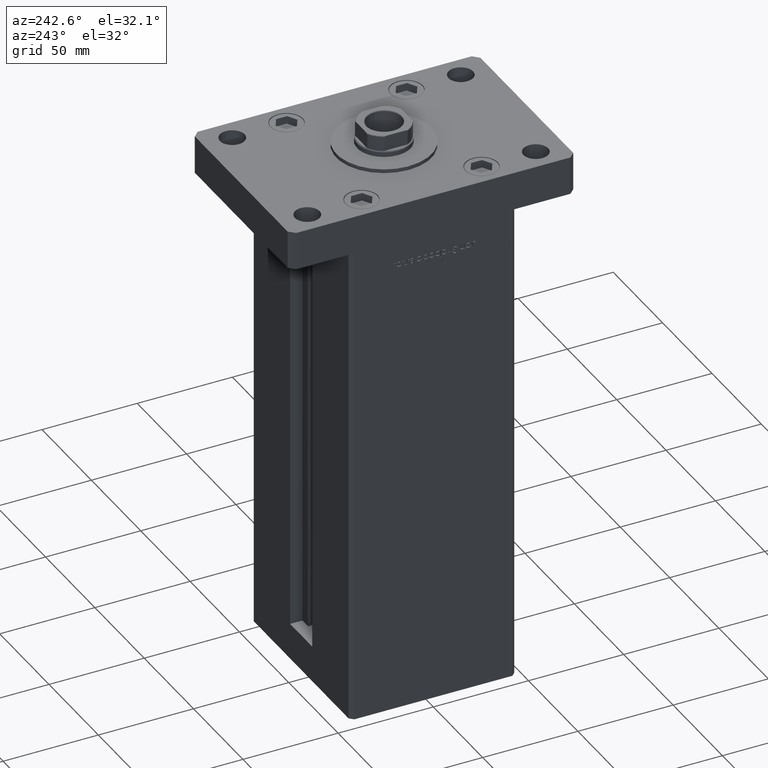
[diagram: clean part render]
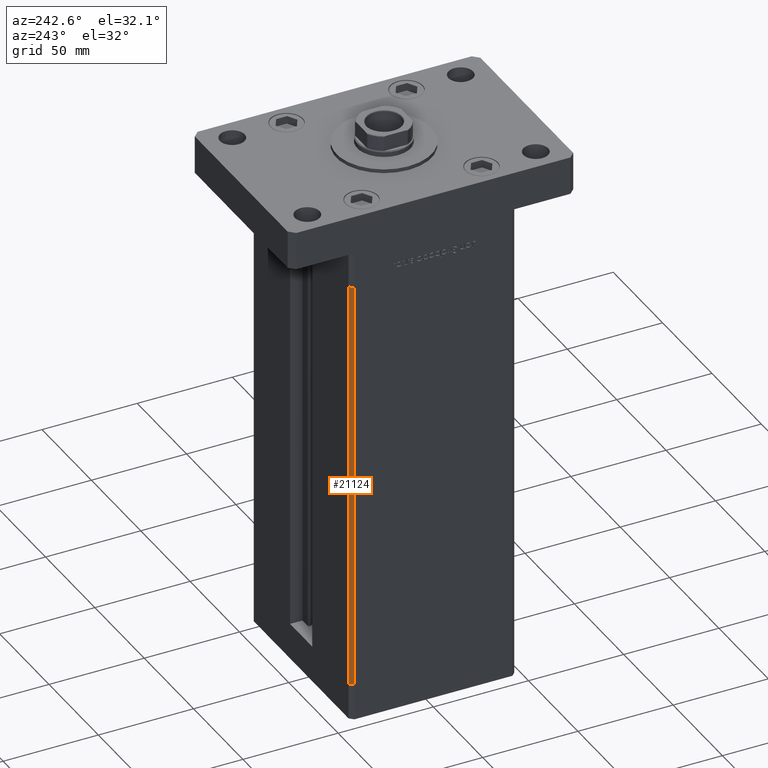
[diagram: same view with one face highlighted and labeled with its STEP entity id]
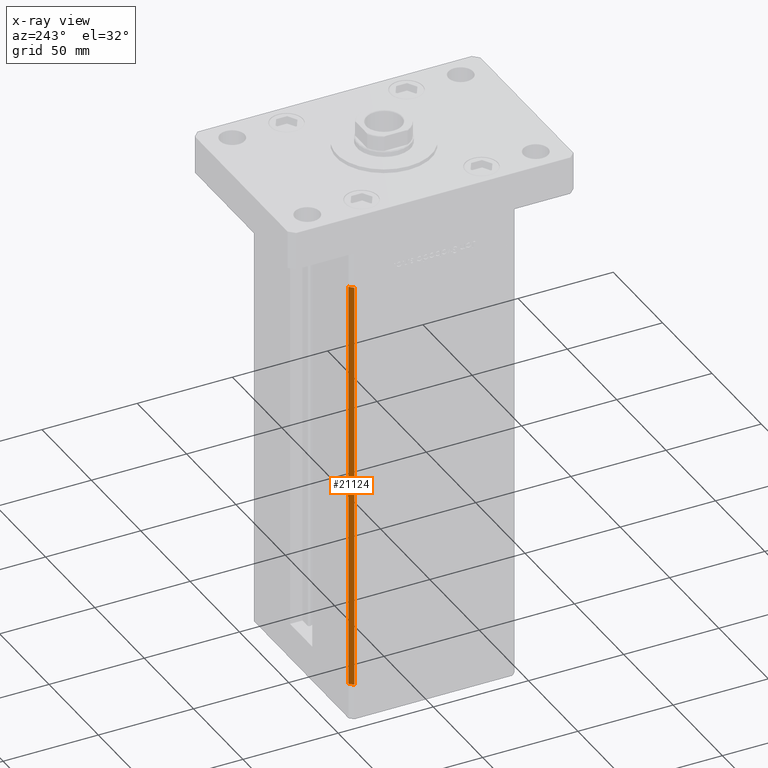
[diagram: x-ray of the same camera — body ghosted, the highlighted face saturated]
A machine part, auxiliary view. The second image highlights one B-rep face of the part: STEP entity #21124.
The next image is the same camera in x-ray: the body ghosted, the highlighted face saturated — about 0% of this face is hidden behind the body in this view.
In plain terms, the highlighted planar face has unit normal (0.7071, -0.7071, 0).
Its self-contained STEP definition (entity closure, byte-faithful):
#34 = LINE ( 'NONE', #4398, #3243 ) ;
#1603 = VECTOR ( 'NONE', #35812, 1000.000000000000000 ) ;
#2121 = ORIENTED_EDGE ( 'NONE', *, *, #45725, .T. ) ;
#2392 = CARTESIAN_POINT ( 'NONE',  ( -50.00000000000001421, 41.49999999999999289, 218.5000000000000000 ) ) ;
#2536 = LINE ( 'NONE', #40710, #44339 ) ;
#2946 = LINE ( 'NONE', #53116, #32719 ) ;
#3243 = VECTOR ( 'NONE', #16670, 1000.000000000000000 ) ;
#4398 = CARTESIAN_POINT ( 'NONE',  ( -48.00000000000000711, 43.50000000000000000, 0.000000000000000000 ) ) ;
#6306 = EDGE_CURVE ( 'NONE', #18978, #47570, #2946, .T. ) ;
#6987 = FACE_OUTER_BOUND ( 'NONE', #17711, .T. ) ;
#7923 = ORIENTED_EDGE ( 'NONE', *, *, #15303, .T. ) ;
#10431 = CARTESIAN_POINT ( 'NONE',  ( -48.00000000000000711, 43.50000000000000000, 0.000000000000000000 ) ) ;
#14277 = CARTESIAN_POINT ( 'NONE',  ( -50.00000000000001421, 41.49999999999999289, 218.5000000000000000 ) ) ;
#15303 = EDGE_CURVE ( 'NONE', #49465, #20375, #34, .T. ) ;
#15967 = DIRECTION ( 'NONE',  ( 0.7071067811865486830, 0.7071067811865463515, 0.000000000000000000 ) ) ;
#16670 = DIRECTION ( 'NONE',  ( -0.7071067811865487940, -0.7071067811865463515, 0.000000000000000000 ) ) ;
#17711 = EDGE_LOOP ( 'NONE', ( #7923, #45657, #43360, #2121 ) ) ;
#18978 = VERTEX_POINT ( 'NONE', #31122 ) ;
#19511 = PLANE ( 'NONE',  #40052 ) ;
#20375 = VERTEX_POINT ( 'NONE', #21660 ) ;
#21124 = ADVANCED_FACE ( 'NONE', ( #6987 ), #19511, .F. ) ;
#21660 = CARTESIAN_POINT ( 'NONE',  ( -50.00000000000001421, 41.49999999999999289, 0.000000000000000000 ) ) ;
#24315 = DIRECTION ( 'NONE',  ( -0.000000000000000000, -0.000000000000000000, -1.000000000000000000 ) ) ;
#31122 = CARTESIAN_POINT ( 'NONE',  ( -48.00000000000000711, 43.50000000000000000, 218.5000000000000000 ) ) ;
#32719 = VECTOR ( 'NONE', #36493, 1000.000000000000000 ) ;
#35812 = DIRECTION ( 'NONE',  ( -0.000000000000000000, -0.000000000000000000, -1.000000000000000000 ) ) ;
#36436 = DIRECTION ( 'NONE',  ( 0.7071067811865463515, -0.7071067811865486830, 0.000000000000000000 ) ) ;
#36493 = DIRECTION ( 'NONE',  ( -0.7071067811865487940, -0.7071067811865463515, 0.000000000000000000 ) ) ;
#39473 = EDGE_CURVE ( 'NONE', #47570, #20375, #39917, .T. ) ;
#39917 = LINE ( 'NONE', #14277, #1603 ) ;
#40052 = AXIS2_PLACEMENT_3D ( 'NONE', #52792, #36436, #15967 ) ;
#40710 = CARTESIAN_POINT ( 'NONE',  ( -48.00000000000000711, 43.50000000000000000, 218.5000000000000000 ) ) ;
#43360 = ORIENTED_EDGE ( 'NONE', *, *, #6306, .F. ) ;
#44339 = VECTOR ( 'NONE', #24315, 1000.000000000000000 ) ;
#45657 = ORIENTED_EDGE ( 'NONE', *, *, #39473, .F. ) ;
#45725 = EDGE_CURVE ( 'NONE', #18978, #49465, #2536, .T. ) ;
#47570 = VERTEX_POINT ( 'NONE', #2392 ) ;
#49465 = VERTEX_POINT ( 'NONE', #10431 ) ;
#52792 = CARTESIAN_POINT ( 'NONE',  ( -48.00000000000000711, 43.50000000000000000, 218.5000000000000000 ) ) ;
#53116 = CARTESIAN_POINT ( 'NONE',  ( -48.00000000000000711, 43.50000000000000000, 218.5000000000000000 ) ) ;